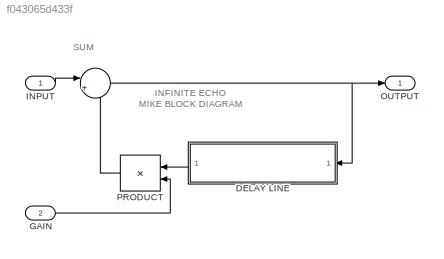
MODEL slx_f043065d433f
KIND model
CONFIG AbsTol = auto
CONFIG EnableMultiTasking = off
CONFIG FixedStep = auto
CONFIG MaxStep = auto
CONFIG MinStep = auto
CONFIG RelTol = 1e-3
CONFIG SampleTimeConstraint = Unconstrained
CONFIG SolverName = VariableStepAuto
CONFIG StartTime = 0.0
CONFIG StopTime = 10.0
BLOCK [Sum]  
  Inputs = |++
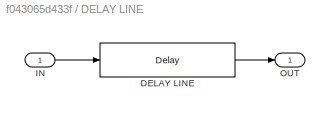
BLOCK [SubSystem] DELAY LINE
BLOCK [Delay] DELAY LINE/DELAY LINE
  DelayLength = 4800
  InitialCondition = 0
  InputPortMap = u0
BLOCK [Inport] DELAY LINE/IN 
BLOCK [Outport] DELAY LINE/OUT
BLOCK [Inport] GAIN
  Port = 2
BLOCK [Inport] INPUT
BLOCK [Outport] OUTPUT
BLOCK [Product] PRODUCT
ANNOTATION (root): INFINITE ECHO MIKE BLOCK DIAGRAM
ANNOTATION (root): SUM
NET  :1 -> DELAY LINE:1, OUTPUT:1
LINE DELAY LINE/DELAY LINE:1 -> DELAY LINE/OUT:1
LINE DELAY LINE/IN :1 -> DELAY LINE/DELAY LINE:1
LINE DELAY LINE:1 -> PRODUCT:1
LINE GAIN:1 -> PRODUCT:2
LINE INPUT:1 ->  :1
LINE PRODUCT:1 ->  :2
note: NET lines group one-source signal fan-out (src -> all destinations, sorted); 1:1 wires keep LINE
